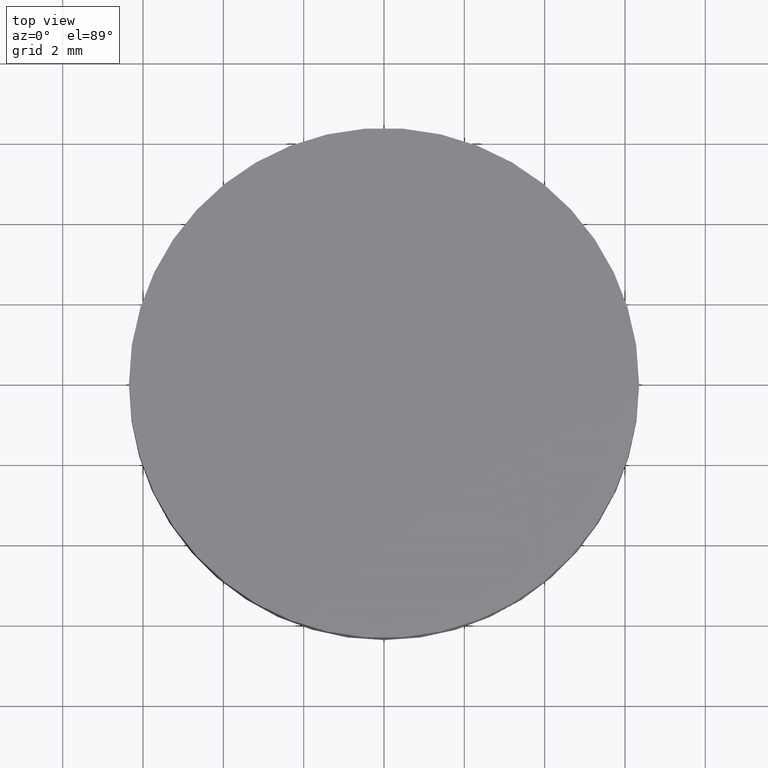
[diagram: clean part render]
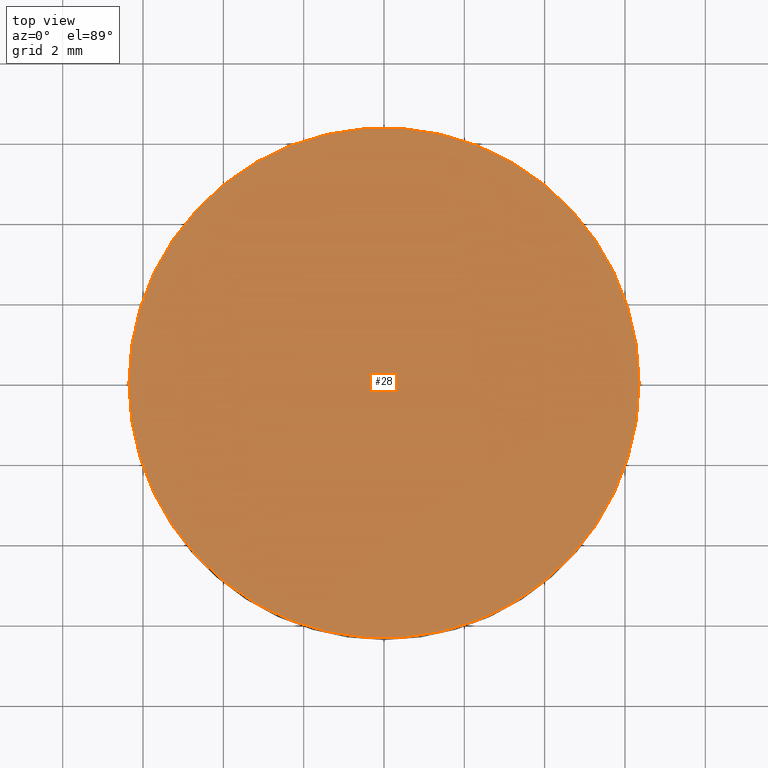
[diagram: same view with one face highlighted and labeled with its STEP entity id]
A machine part, top view. The second image highlights one B-rep face of the part: STEP entity #28.
In plain terms, the highlighted planar face has unit normal (0, 0, 1).
Its self-contained STEP definition (entity closure, byte-faithful):
#3 = DIRECTION ( 'NONE',  ( -0.0000000000000000000, -0.0000000000000000000, -1.000000000000000000 ) ) ;
#9 = AXIS2_PLACEMENT_3D ( 'NONE', #12, #66, #67 ) ;
#12 = CARTESIAN_POINT ( 'NONE',  ( 2.498001805406600200E-016, 1.221245327087670000E-015, 2.799999999999999800 ) ) ;
#15 = EDGE_CURVE ( 'NONE', #176, #182, #97, .T. ) ;
#28 = ADVANCED_FACE ( 'NONE', ( #73 ), #171, .T. ) ;
#40 = CARTESIAN_POINT ( 'NONE',  ( 6.349999999999999600, 1.221245327087670000E-015, 2.799999999999999800 ) ) ;
#43 = CIRCLE ( 'NONE', #92, 6.349999999999999600 ) ;
#66 = DIRECTION ( 'NONE',  ( -0.0000000000000000000, -0.0000000000000000000, -1.000000000000000000 ) ) ;
#67 = DIRECTION ( 'NONE',  ( 1.000000000000000000, 0.0000000000000000000, 0.0000000000000000000 ) ) ;
#73 = FACE_OUTER_BOUND ( 'NONE', #78, .T. ) ;
#78 = EDGE_LOOP ( 'NONE', ( #216, #83 ) ) ;
#83 = ORIENTED_EDGE ( 'NONE', *, *, #228, .F. ) ;
#92 = AXIS2_PLACEMENT_3D ( 'NONE', #98, #3, #219 ) ;
#97 = CIRCLE ( 'NONE', #9, 6.349999999999999600 ) ;
#98 = CARTESIAN_POINT ( 'NONE',  ( 2.498001805406600200E-016, 1.221245327087670000E-015, 2.799999999999999800 ) ) ;
#120 = DIRECTION ( 'NONE',  ( 0.0000000000000000000, 0.0000000000000000000, 1.000000000000000000 ) ) ;
#171 = PLANE ( 'NONE',  #235 ) ;
#172 = CARTESIAN_POINT ( 'NONE',  ( -6.349999999999999600, 1.998896044546239400E-015, 2.799999999999999800 ) ) ;
#176 = VERTEX_POINT ( 'NONE', #40 ) ;
#182 = VERTEX_POINT ( 'NONE', #172 ) ;
#191 = CARTESIAN_POINT ( 'NONE',  ( 0.0000000000000000000, 13.15799999999999900, 2.799999999999999800 ) ) ;
#208 = DIRECTION ( 'NONE',  ( 1.000000000000000000, 0.0000000000000000000, -0.0000000000000000000 ) ) ;
#216 = ORIENTED_EDGE ( 'NONE', *, *, #15, .F. ) ;
#219 = DIRECTION ( 'NONE',  ( 1.000000000000000000, 0.0000000000000000000, 0.0000000000000000000 ) ) ;
#228 = EDGE_CURVE ( 'NONE', #182, #176, #43, .T. ) ;
#235 = AXIS2_PLACEMENT_3D ( 'NONE', #191, #120, #208 ) ;